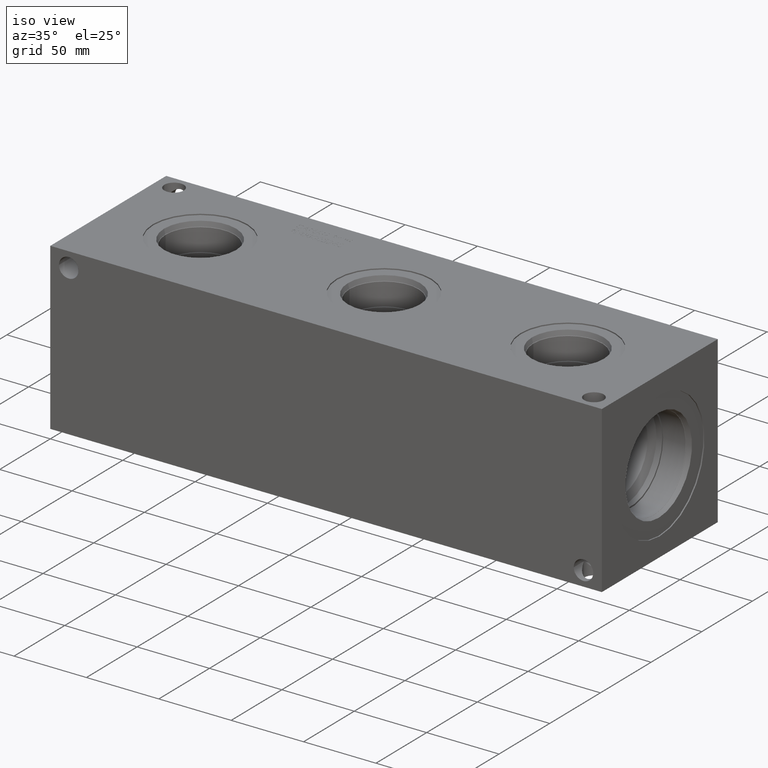
[diagram: clean part render]
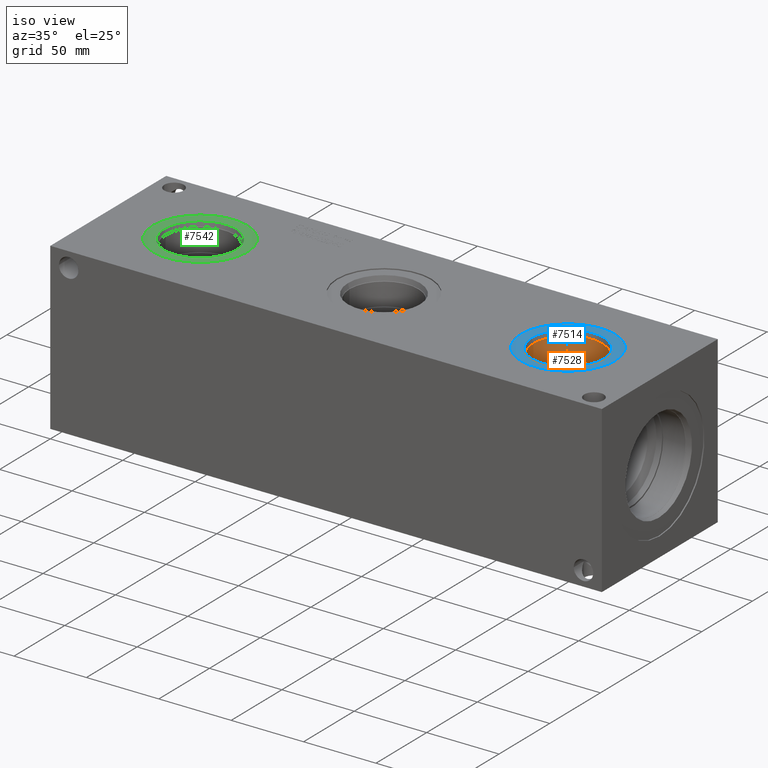
[diagram: same view with three faces highlighted in distinct colors, each labeled with its STEP entity id]
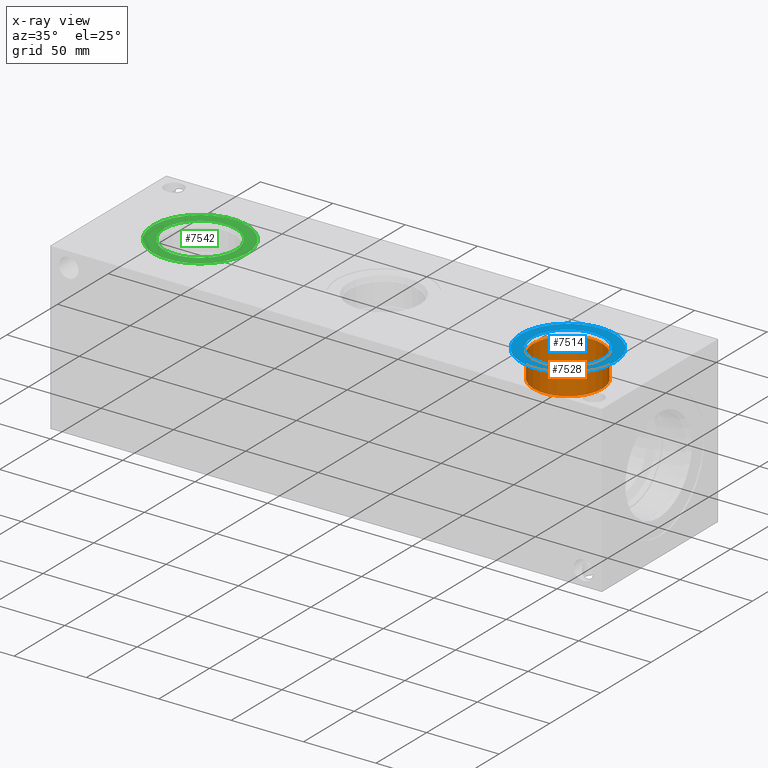
[diagram: x-ray of the same camera — body ghosted, the three highlighted faces saturated]
A machine part, iso view with three faces highlighted in distinct colors.
The next image is the same camera in x-ray (body ghosted, the three faces saturated) — at least one of them is partly hidden behind the body in this view.
Their STEP definitions:

[orange] entity #7528 — the highlighted cylindrical surface (bore or boss wall) has radius 23.8125 mm, axis along (0, 0, 1).
#56=CYLINDRICAL_SURFACE('',#7875,23.8125);
#101=CIRCLE('',#7847,23.8125);
#116=CIRCLE('',#7872,23.8125);
#117=CIRCLE('',#7873,23.8125);
#884=FACE_OUTER_BOUND('',#1302,.T.);
#1302=EDGE_LOOP('',(#6410,#6411,#6412,#6413,#6414));
#2046=LINE('',#12762,#2768);
#2768=VECTOR('',#9244,23.8125);
#3417=VERTEX_POINT('',#12675);
#3435=VERTEX_POINT('',#12755);
#3436=VERTEX_POINT('',#12756);
#4423=EDGE_CURVE('',#3417,#3417,#101,.T.);
#4448=EDGE_CURVE('',#3435,#3436,#116,.T.);
#4449=EDGE_CURVE('',#3436,#3435,#117,.T.);
#4451=EDGE_CURVE('',#3417,#3436,#2046,.T.);
#6410=ORIENTED_EDGE('',*,*,#4423,.T.);
#6411=ORIENTED_EDGE('',*,*,#4451,.T.);
#6412=ORIENTED_EDGE('',*,*,#4448,.F.);
#6413=ORIENTED_EDGE('',*,*,#4449,.F.);
#6414=ORIENTED_EDGE('',*,*,#4451,.F.);
#7528=ADVANCED_FACE('',(#884),#56,.F.);
#7847=AXIS2_PLACEMENT_3D('',#12677,#9178,#9179);
#7872=AXIS2_PLACEMENT_3D('',#12757,#9236,#9237);
#7873=AXIS2_PLACEMENT_3D('',#12758,#9238,#9239);
#7875=AXIS2_PLACEMENT_3D('',#12761,#9242,#9243);
#9178=DIRECTION('center_axis',(0.,0.,1.));
#9179=DIRECTION('ref_axis',(1.,0.,0.));
#9236=DIRECTION('center_axis',(0.,0.,1.));
#9237=DIRECTION('ref_axis',(1.,0.,0.));
#9238=DIRECTION('center_axis',(0.,0.,1.));
#9239=DIRECTION('ref_axis',(1.,0.,0.));
#9242=DIRECTION('center_axis',(0.,0.,1.));
#9243=DIRECTION('ref_axis',(1.,0.,0.));
#9244=DIRECTION('',(0.,0.,-1.));
#12675=CARTESIAN_POINT('',(293.6875,57.15,110.0201));
#12677=CARTESIAN_POINT('Origin',(317.5,57.15,110.0201));
#12755=CARTESIAN_POINT('',(341.3125,57.15,94.4626));
#12756=CARTESIAN_POINT('',(293.6875,57.15,94.4626));
#12757=CARTESIAN_POINT('Origin',(317.5,57.15,94.4626));
#12758=CARTESIAN_POINT('Origin',(317.5,57.15,94.4626));
#12761=CARTESIAN_POINT('Origin',(317.5,57.15,104.3813));
#12762=CARTESIAN_POINT('',(293.6875,57.15,104.3813));

[blue] entity #7514 — the highlighted planar face has unit normal (0, 0, -1).
#93=CIRCLE('',#7835,32.5628);
#94=CIRCLE('',#7836,32.5628);
#95=CIRCLE('',#7838,24.9047);
#96=CIRCLE('',#7839,24.9047);
#215=FACE_BOUND('',#1286,.T.);
#870=FACE_OUTER_BOUND('',#1285,.T.);
#1285=EDGE_LOOP('',(#6343,#6344));
#1286=EDGE_LOOP('',(#6345,#6346));
#3409=VERTEX_POINT('',#12652);
#3410=VERTEX_POINT('',#12654);
#3411=VERTEX_POINT('',#12658);
#3412=VERTEX_POINT('',#12659);
#4412=EDGE_CURVE('',#3409,#3410,#93,.T.);
#4413=EDGE_CURVE('',#3410,#3409,#94,.T.);
#4414=EDGE_CURVE('',#3411,#3412,#95,.T.);
#4415=EDGE_CURVE('',#3412,#3411,#96,.T.);
#6343=ORIENTED_EDGE('',*,*,#4413,.F.);
#6344=ORIENTED_EDGE('',*,*,#4412,.F.);
#6345=ORIENTED_EDGE('',*,*,#4414,.T.);
#6346=ORIENTED_EDGE('',*,*,#4415,.T.);
#6868=PLANE('',#7837);
#7514=ADVANCED_FACE('',(#870,#215),#6868,.F.);
#7835=AXIS2_PLACEMENT_3D('',#12655,#9151,#9152);
#7836=AXIS2_PLACEMENT_3D('',#12656,#9153,#9154);
#7837=AXIS2_PLACEMENT_3D('',#12657,#9155,#9156);
#7838=AXIS2_PLACEMENT_3D('',#12660,#9157,#9158);
#7839=AXIS2_PLACEMENT_3D('',#12661,#9159,#9160);
#9151=DIRECTION('center_axis',(0.,0.,-1.));
#9152=DIRECTION('ref_axis',(1.,0.,0.));
#9153=DIRECTION('center_axis',(0.,0.,-1.));
#9154=DIRECTION('ref_axis',(1.,0.,0.));
#9155=DIRECTION('center_axis',(0.,0.,-1.));
#9156=DIRECTION('ref_axis',(-1.,0.,0.));
#9157=DIRECTION('center_axis',(0.,0.,-1.));
#9158=DIRECTION('ref_axis',(1.,0.,0.));
#9159=DIRECTION('center_axis',(0.,0.,-1.));
#9160=DIRECTION('ref_axis',(1.,0.,0.));
#12652=CARTESIAN_POINT('',(284.9372,57.15,113.5126));
#12654=CARTESIAN_POINT('',(350.0628,57.15,113.5126));
#12655=CARTESIAN_POINT('Origin',(317.5,57.15,113.5126));
#12656=CARTESIAN_POINT('Origin',(317.5,57.15,113.5126));
#12657=CARTESIAN_POINT('Origin',(342.4047,57.15,113.5126));
#12658=CARTESIAN_POINT('',(342.4047,57.15,113.5126));
#12659=CARTESIAN_POINT('',(292.5953,57.15,113.5126));
#12660=CARTESIAN_POINT('Origin',(317.5,57.15,113.5126));
#12661=CARTESIAN_POINT('Origin',(317.5,57.15,113.5126));

[green] entity #7542 — the highlighted planar face has unit normal (0, 0, -1).
#135=CIRCLE('',#7905,32.5628);
#136=CIRCLE('',#7906,32.5628);
#137=CIRCLE('',#7908,24.9047);
#138=CIRCLE('',#7909,24.9047);
#220=FACE_BOUND('',#1319,.T.);
#898=FACE_OUTER_BOUND('',#1318,.T.);
#1318=EDGE_LOOP('',(#6482,#6483));
#1319=EDGE_LOOP('',(#6484,#6485));
#3458=VERTEX_POINT('',#12854);
#3459=VERTEX_POINT('',#12856);
#3460=VERTEX_POINT('',#12860);
#3461=VERTEX_POINT('',#12861);
#4483=EDGE_CURVE('',#3458,#3459,#135,.T.);
#4484=EDGE_CURVE('',#3459,#3458,#136,.T.);
#4485=EDGE_CURVE('',#3460,#3461,#137,.T.);
#4486=EDGE_CURVE('',#3461,#3460,#138,.T.);
#6482=ORIENTED_EDGE('',*,*,#4484,.F.);
#6483=ORIENTED_EDGE('',*,*,#4483,.F.);
#6484=ORIENTED_EDGE('',*,*,#4485,.T.);
#6485=ORIENTED_EDGE('',*,*,#4486,.T.);
#6873=PLANE('',#7907);
#7542=ADVANCED_FACE('',(#898,#220),#6873,.F.);
#7905=AXIS2_PLACEMENT_3D('',#12857,#9314,#9315);
#7906=AXIS2_PLACEMENT_3D('',#12858,#9316,#9317);
#7907=AXIS2_PLACEMENT_3D('',#12859,#9318,#9319);
#7908=AXIS2_PLACEMENT_3D('',#12862,#9320,#9321);
#7909=AXIS2_PLACEMENT_3D('',#12863,#9322,#9323);
#9314=DIRECTION('center_axis',(0.,0.,-1.));
#9315=DIRECTION('ref_axis',(1.,0.,0.));
#9316=DIRECTION('center_axis',(0.,0.,-1.));
#9317=DIRECTION('ref_axis',(1.,0.,0.));
#9318=DIRECTION('center_axis',(0.,0.,-1.));
#9319=DIRECTION('ref_axis',(-1.,0.,0.));
#9320=DIRECTION('center_axis',(0.,0.,-1.));
#9321=DIRECTION('ref_axis',(1.,0.,0.));
#9322=DIRECTION('center_axis',(0.,0.,-1.));
#9323=DIRECTION('ref_axis',(1.,0.,0.));
#12854=CARTESIAN_POINT('',(30.9372,57.15,113.5126));
#12856=CARTESIAN_POINT('',(96.0628,57.15,113.5126));
#12857=CARTESIAN_POINT('Origin',(63.5,57.15,113.5126));
#12858=CARTESIAN_POINT('Origin',(63.5,57.15,113.5126));
#12859=CARTESIAN_POINT('Origin',(88.4047,57.15,113.5126));
#12860=CARTESIAN_POINT('',(88.4047,57.15,113.5126));
#12861=CARTESIAN_POINT('',(38.5953,57.15,113.5126));
#12862=CARTESIAN_POINT('Origin',(63.5,57.15,113.5126));
#12863=CARTESIAN_POINT('Origin',(63.5,57.15,113.5126));